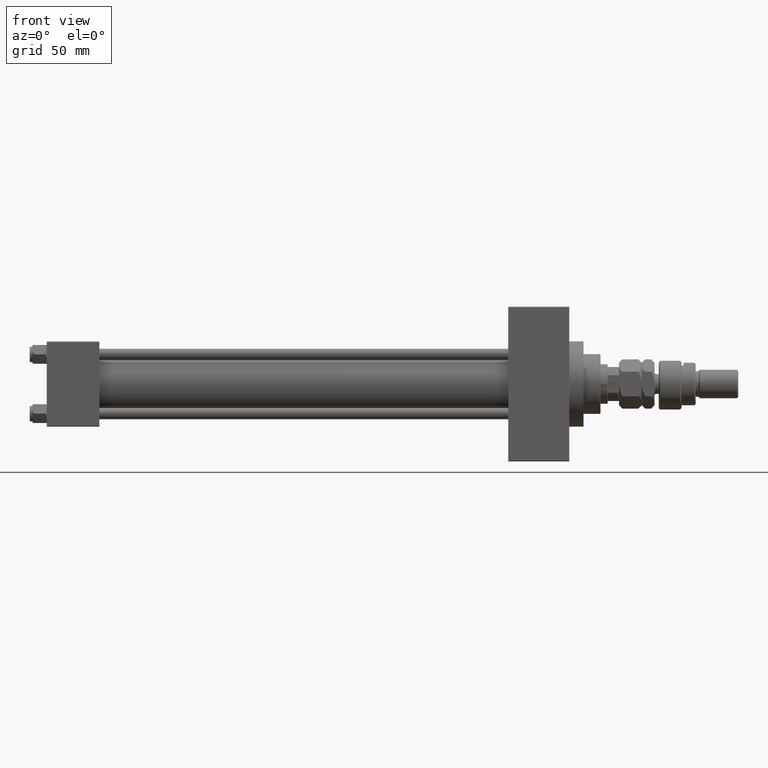
[diagram: clean part render]
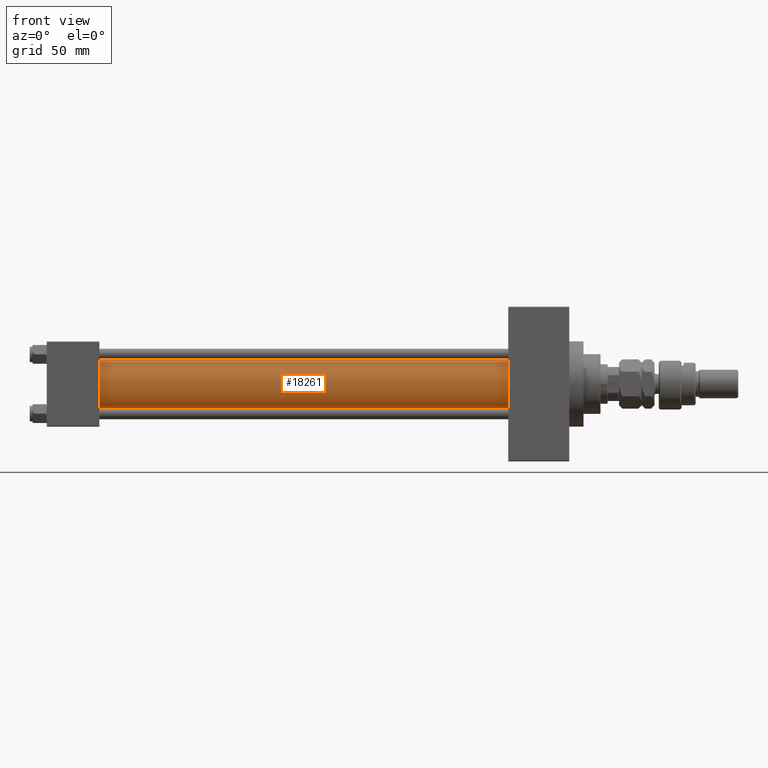
[diagram: same view with one face highlighted and labeled with its STEP entity id]
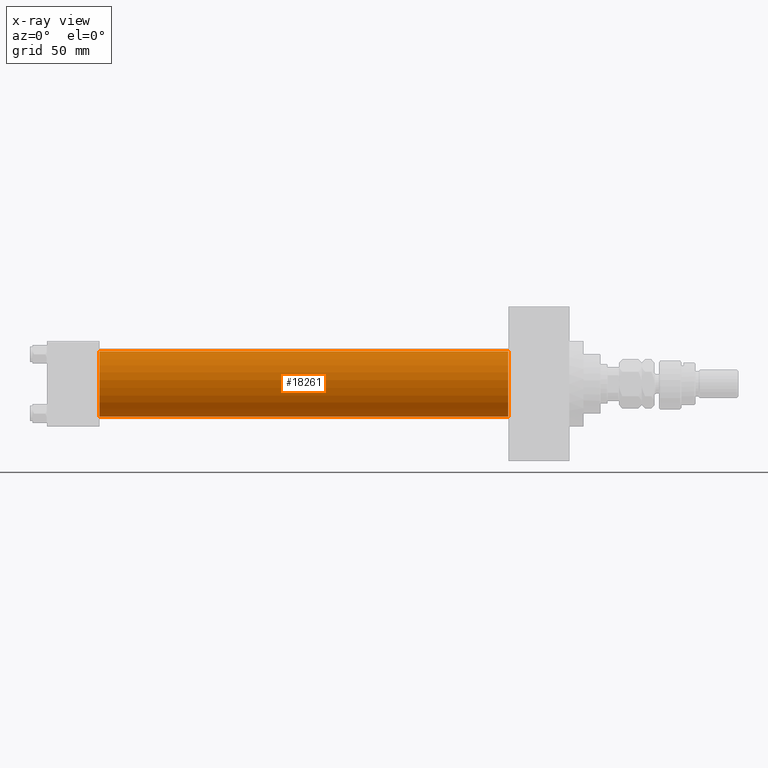
[diagram: x-ray of the same camera — body ghosted, the highlighted face saturated]
A machine part, front view. The second image highlights one B-rep face of the part: STEP entity #18261.
The next image is the same camera in x-ray: the body ghosted, the highlighted face saturated — about 0% of this face is hidden behind the body in this view.
In plain terms, the highlighted cylindrical surface (edge-blend (fillet) strip) has radius 23 mm, axis along (-1, -0, -0).
Its self-contained STEP definition (entity closure, byte-faithful):
#210 = DIRECTION ( 'NONE',  ( 1.000000000000000000, -0.000000000000000000, 0.000000000000000000 ) ) ;
#569 = CARTESIAN_POINT ( 'NONE',  ( 324.9999999999999432, -2.602085213965210642E-15, 23.00000000000000000 ) ) ;
#6219 = CARTESIAN_POINT ( 'NONE',  ( 324.9999999999999432, 2.146024240737016609E-16, -23.00000000000000000 ) ) ;
#7004 = DIRECTION ( 'NONE',  ( 1.000000000000000000, 0.000000000000000000, 0.000000000000000000 ) ) ;
#7305 = AXIS2_PLACEMENT_3D ( 'NONE', #20372, #210, #48202 ) ;
#7361 = ORIENTED_EDGE ( 'NONE', *, *, #19690, .F. ) ;
#7914 = VERTEX_POINT ( 'NONE', #39722 ) ;
#9462 = LINE ( 'NONE', #33078, #19293 ) ;
#10275 = EDGE_CURVE ( 'NONE', #47643, #29122, #9462, .T. ) ;
#11063 = AXIS2_PLACEMENT_3D ( 'NONE', #29126, #48485, #40536 ) ;
#14461 = AXIS2_PLACEMENT_3D ( 'NONE', #51542, #7004, #42798 ) ;
#18261 = ADVANCED_FACE ( 'NONE', ( #49009 ), #37090, .T. ) ;
#19290 = CARTESIAN_POINT ( 'NONE',  ( 324.9999999999999432, 2.146024240737016609E-16, -23.00000000000000000 ) ) ;
#19293 = VECTOR ( 'NONE', #21136, 1000.000000000000000 ) ;
#19690 = EDGE_CURVE ( 'NONE', #24682, #7914, #42791, .T. ) ;
#20372 = CARTESIAN_POINT ( 'NONE',  ( 36.99999999999997868, -2.602085213965210642E-15, 0.000000000000000000 ) ) ;
#21136 = DIRECTION ( 'NONE',  ( -1.000000000000000000, -0.000000000000000000, -0.000000000000000000 ) ) ;
#22539 = CIRCLE ( 'NONE', #7305, 23.00000000000000000 ) ;
#23940 = ORIENTED_EDGE ( 'NONE', *, *, #43537, .F. ) ;
#24682 = VERTEX_POINT ( 'NONE', #19290 ) ;
#28146 = ORIENTED_EDGE ( 'NONE', *, *, #28866, .T. ) ;
#28866 = EDGE_CURVE ( 'NONE', #29122, #7914, #22539, .T. ) ;
#29122 = VERTEX_POINT ( 'NONE', #35694 ) ;
#29126 = CARTESIAN_POINT ( 'NONE',  ( 324.9999999999999432, -2.602085213965210642E-15, 0.000000000000000000 ) ) ;
#29765 = VECTOR ( 'NONE', #45993, 1000.000000000000000 ) ;
#30558 = CIRCLE ( 'NONE', #14461, 23.00000000000000000 ) ;
#33078 = CARTESIAN_POINT ( 'NONE',  ( 324.9999999999999432, -2.602085213965210642E-15, 23.00000000000000000 ) ) ;
#35694 = CARTESIAN_POINT ( 'NONE',  ( 36.99999999999997868, -2.602085213965210642E-15, 23.00000000000000000 ) ) ;
#37090 = CYLINDRICAL_SURFACE ( 'NONE', #11063, 23.00000000000000000 ) ;
#38461 = EDGE_LOOP ( 'NONE', ( #7361, #23940, #39732, #28146 ) ) ;
#39722 = CARTESIAN_POINT ( 'NONE',  ( 36.99999999999997868, 2.146024240737016609E-16, -23.00000000000000000 ) ) ;
#39732 = ORIENTED_EDGE ( 'NONE', *, *, #10275, .T. ) ;
#40536 = DIRECTION ( 'NONE',  ( 0.000000000000000000, 0.000000000000000000, 1.000000000000000000 ) ) ;
#42791 = LINE ( 'NONE', #6219, #29765 ) ;
#42798 = DIRECTION ( 'NONE',  ( 0.000000000000000000, 0.000000000000000000, -1.000000000000000000 ) ) ;
#43537 = EDGE_CURVE ( 'NONE', #47643, #24682, #30558, .T. ) ;
#45993 = DIRECTION ( 'NONE',  ( -1.000000000000000000, -0.000000000000000000, -0.000000000000000000 ) ) ;
#47643 = VERTEX_POINT ( 'NONE', #569 ) ;
#48202 = DIRECTION ( 'NONE',  ( 0.000000000000000000, 0.000000000000000000, 1.000000000000000000 ) ) ;
#48485 = DIRECTION ( 'NONE',  ( -1.000000000000000000, -0.000000000000000000, -0.000000000000000000 ) ) ;
#49009 = FACE_OUTER_BOUND ( 'NONE', #38461, .T. ) ;
#51542 = CARTESIAN_POINT ( 'NONE',  ( 324.9999999999999432, -2.602085213965210642E-15, 0.000000000000000000 ) ) ;